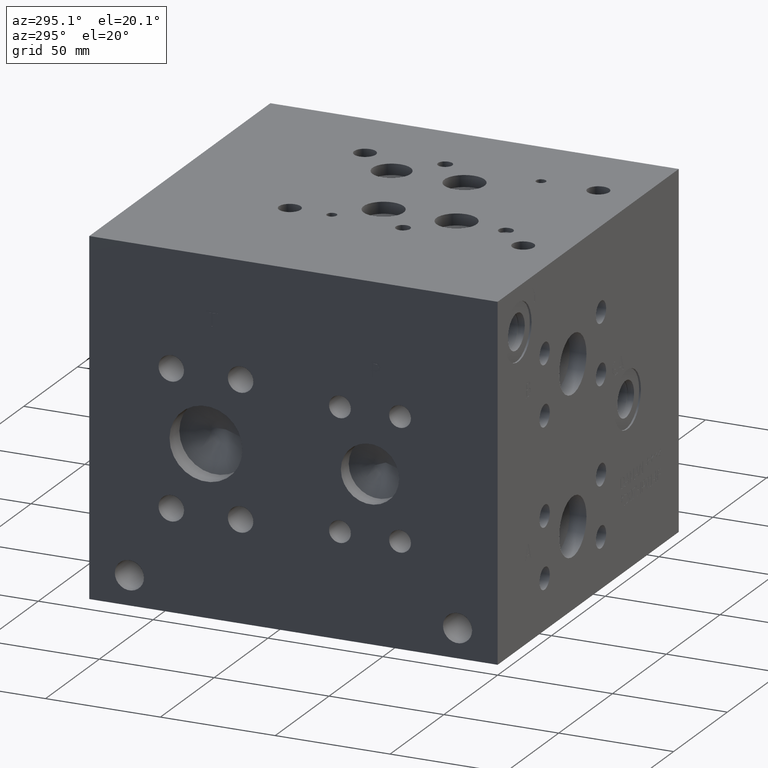
[diagram: clean part render]
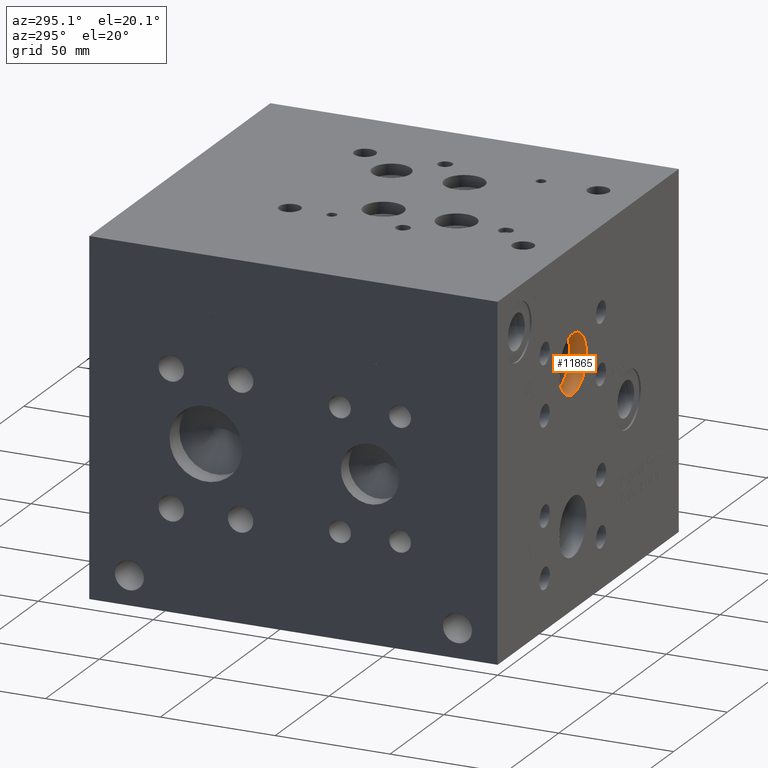
[diagram: same view with one face highlighted and labeled with its STEP entity id]
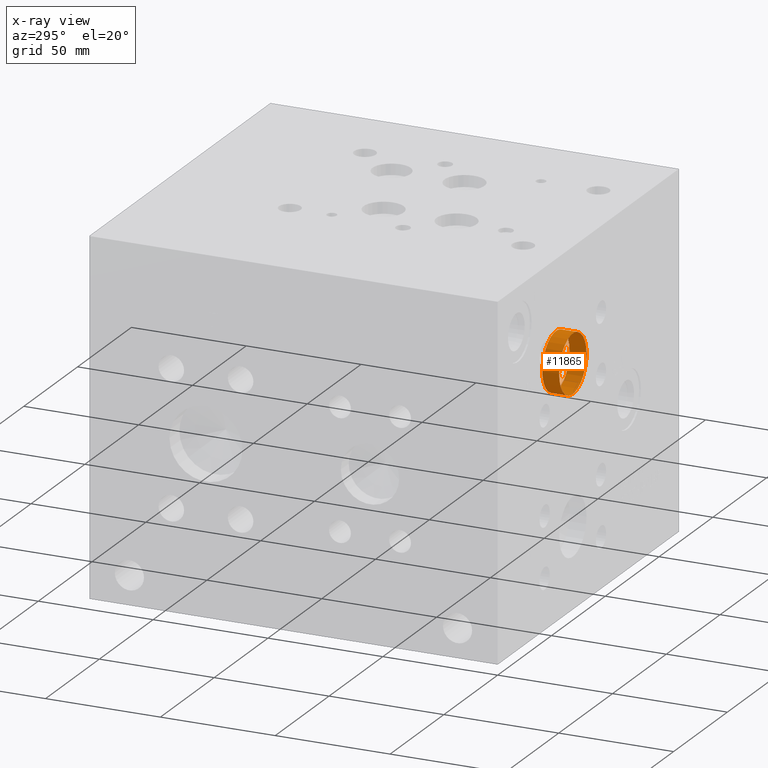
[diagram: x-ray of the same camera — body ghosted, the highlighted face saturated]
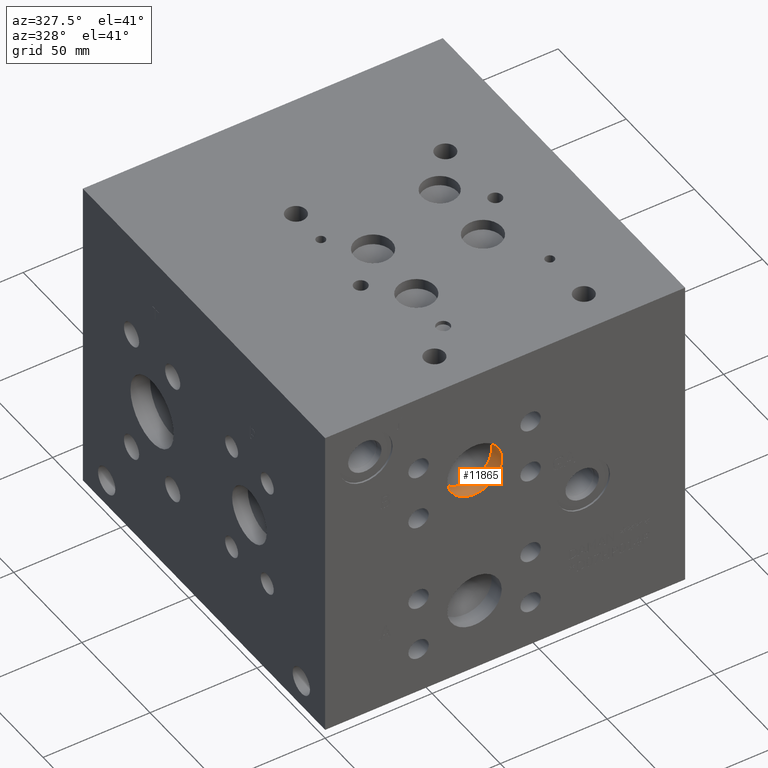
[diagram: same view with one face highlighted and labeled with its STEP entity id]
A machine part, auxiliary view. The second image highlights one B-rep face of the part: STEP entity #11865.
The next image is the same camera in x-ray: the body ghosted, the highlighted face saturated — about 0% of this face is hidden behind the body in this view.
A second angle (auxiliary view) of the same face is appended — the face is thin or edge-on in the first view.
In plain terms, the highlighted cylindrical surface (bore or boss wall) has radius 12.7 mm, axis along (0, -1, 0).
Its self-contained STEP definition (entity closure, byte-faithful):
#84=CYLINDRICAL_SURFACE('',#12655,12.7);
#228=CIRCLE('',#12128,12.7);
#229=CIRCLE('',#12129,12.7);
#414=CIRCLE('',#12653,12.7);
#415=CIRCLE('',#12654,12.7);
#1557=FACE_OUTER_BOUND('',#2280,.T.);
#2280=EDGE_LOOP('',(#10543,#10544,#10545,#10546,#10547,#10548));
#3424=LINE('',#19945,#4539);
#4539=VECTOR('',#15314,12.7);
#5322=VERTEX_POINT('',#17846);
#5323=VERTEX_POINT('',#17847);
#5820=VERTEX_POINT('',#19938);
#5821=VERTEX_POINT('',#19939);
#6645=EDGE_CURVE('',#5322,#5323,#228,.T.);
#6646=EDGE_CURVE('',#5323,#5322,#229,.T.);
#7426=EDGE_CURVE('',#5820,#5821,#414,.T.);
#7428=EDGE_CURVE('',#5821,#5820,#415,.T.);
#7429=EDGE_CURVE('',#5323,#5821,#3424,.T.);
#10543=ORIENTED_EDGE('',*,*,#6645,.F.);
#10544=ORIENTED_EDGE('',*,*,#6646,.F.);
#10545=ORIENTED_EDGE('',*,*,#7429,.T.);
#10546=ORIENTED_EDGE('',*,*,#7426,.F.);
#10547=ORIENTED_EDGE('',*,*,#7428,.F.);
#10548=ORIENTED_EDGE('',*,*,#7429,.F.);
#11865=ADVANCED_FACE('',(#1557),#84,.F.);
#12128=AXIS2_PLACEMENT_3D('',#17848,#13724,#13725);
#12129=AXIS2_PLACEMENT_3D('',#17849,#13726,#13727);
#12653=AXIS2_PLACEMENT_3D('',#19940,#15307,#15308);
#12654=AXIS2_PLACEMENT_3D('',#19943,#15310,#15311);
#12655=AXIS2_PLACEMENT_3D('',#19944,#15312,#15313);
#13724=DIRECTION('center_axis',(0.,1.,0.));
#13725=DIRECTION('ref_axis',(1.,0.,0.));
#13726=DIRECTION('center_axis',(0.,1.,0.));
#13727=DIRECTION('ref_axis',(1.,0.,0.));
#15307=DIRECTION('center_axis',(0.,-1.,0.));
#15308=DIRECTION('ref_axis',(1.,0.,0.));
#15310=DIRECTION('center_axis',(0.,-1.,0.));
#15311=DIRECTION('ref_axis',(1.,0.,0.));
#15312=DIRECTION('center_axis',(0.,-1.,0.));
#15313=DIRECTION('ref_axis',(1.,0.,0.));
#15314=DIRECTION('',(0.,1.,0.));
#17846=CARTESIAN_POINT('',(82.55,0.,103.1748));
#17847=CARTESIAN_POINT('',(57.15,0.,103.1748));
#17848=CARTESIAN_POINT('Origin',(69.85,0.,103.1748));
#17849=CARTESIAN_POINT('Origin',(69.85,0.,103.1748));
#19938=CARTESIAN_POINT('',(82.55,7.33235,103.1748));
#19939=CARTESIAN_POINT('',(57.15,7.33235,103.1748));
#19940=CARTESIAN_POINT('Origin',(69.85,7.33235,103.1748));
#19943=CARTESIAN_POINT('Origin',(69.85,7.33235,103.1748));
#19944=CARTESIAN_POINT('Origin',(69.85,3.666175,103.1748));
#19945=CARTESIAN_POINT('',(57.15,3.666175,103.1748));